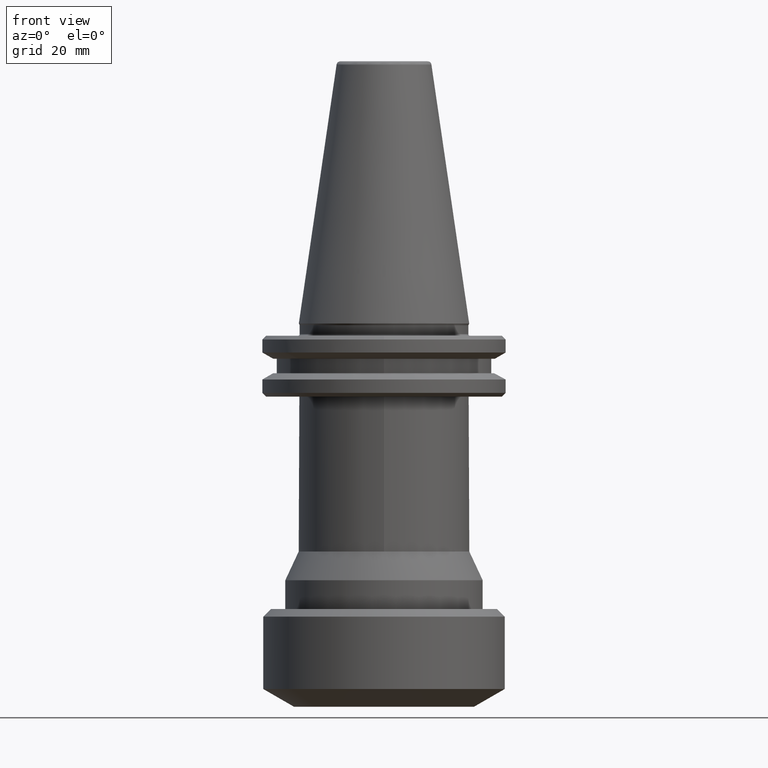
[diagram: clean part render]
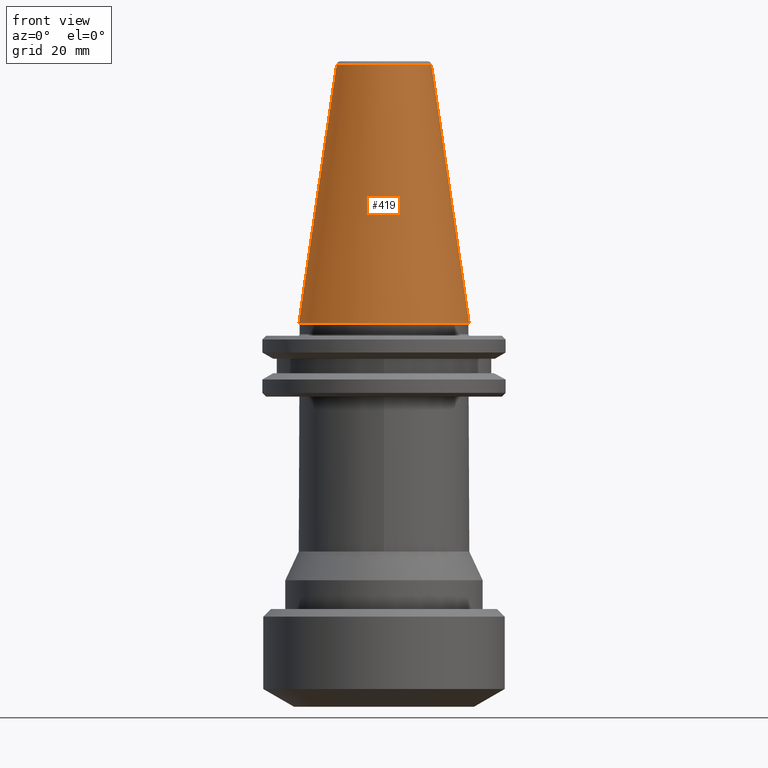
[diagram: same view with one face highlighted and labeled with its STEP entity id]
A machine part, front view. The second image highlights one B-rep face of the part: STEP entity #419.
In plain terms, the highlighted conical surface has half-angle 8.297 deg.
Its self-contained STEP definition (entity closure, byte-faithful):
#46 = VERTEX_POINT ( 'NONE', #1410 ) ;
#82 = CARTESIAN_POINT ( 'NONE',  ( -12.37469537590595300, -5.555843992514513000E-010, 67.54430822698967100 ) ) ;
#86 = VECTOR ( 'NONE', #286, 1000.000000000000100 ) ;
#108 = CARTESIAN_POINT ( 'NONE',  ( -22.22499999999999400, 0.0000000000000000000, 0.0000000000000000000 ) ) ;
#114 = CARTESIAN_POINT ( 'NONE',  ( 0.0000000000000000000, 0.0000000000000000000, 0.0000000000000000000 ) ) ;
#143 = ORIENTED_EDGE ( 'NONE', *, *, #1030, .T. ) ;
#208 = LINE ( 'NONE', #1600, #86 ) ;
#286 = DIRECTION ( 'NONE',  ( -0.1443082272694599400, 0.0000000000000000000, -0.9895327864918603800 ) ) ;
#310 = VECTOR ( 'NONE', #711, 1000.000000000000100 ) ;
#324 = CARTESIAN_POINT ( 'NONE',  ( 0.0000000000000000000, 0.0000000000000000000, 0.0000000000000000000 ) ) ;
#342 = ORIENTED_EDGE ( 'NONE', *, *, #478, .T. ) ;
#407 = LINE ( 'NONE', #1584, #310 ) ;
#419 = ADVANCED_FACE ( 'NONE', ( #674 ), #1191, .T. ) ;
#478 = EDGE_CURVE ( 'NONE', #1772, #46, #1167, .T. ) ;
#484 = ORIENTED_EDGE ( 'NONE', *, *, #1866, .T. ) ;
#602 = VERTEX_POINT ( 'NONE', #82 ) ;
#623 = CARTESIAN_POINT ( 'NONE',  ( 0.0000000000000000000, 0.0000000000000000000, 67.54430822701309000 ) ) ;
#674 = FACE_OUTER_BOUND ( 'NONE', #1656, .T. ) ;
#688 = AXIS2_PLACEMENT_3D ( 'NONE', #623, #1637, #780 ) ;
#704 = AXIS2_PLACEMENT_3D ( 'NONE', #114, #1362, #1218 ) ;
#711 = DIRECTION ( 'NONE',  ( 0.1443082272694599400, 1.767266086161729200E-017, -0.9895327864918603800 ) ) ;
#780 = DIRECTION ( 'NONE',  ( -1.000000000000000000, 0.0000000000000000000, 0.0000000000000000000 ) ) ;
#933 = VERTEX_POINT ( 'NONE', #1704 ) ;
#1030 = EDGE_CURVE ( 'NONE', #933, #602, #1526, .T. ) ;
#1073 = DIRECTION ( 'NONE',  ( -1.000000000000000000, 0.0000000000000000000, 0.0000000000000000000 ) ) ;
#1167 = CIRCLE ( 'NONE', #1300, 22.22499999999999400 ) ;
#1173 = ORIENTED_EDGE ( 'NONE', *, *, #1657, .F. ) ;
#1191 = CONICAL_SURFACE ( 'NONE', #704, 22.22499999999999400, 0.1448138465495947800 ) ;
#1218 = DIRECTION ( 'NONE',  ( -1.000000000000000000, 0.0000000000000000000, 0.0000000000000000000 ) ) ;
#1300 = AXIS2_PLACEMENT_3D ( 'NONE', #324, #1641, #1073 ) ;
#1362 = DIRECTION ( 'NONE',  ( 0.0000000000000000000, 0.0000000000000000000, -1.000000000000000000 ) ) ;
#1410 = CARTESIAN_POINT ( 'NONE',  ( 22.22499999999999400, 2.721777511104992100E-015, 0.0000000000000000000 ) ) ;
#1526 = CIRCLE ( 'NONE', #688, 12.37469537599809200 ) ;
#1584 = CARTESIAN_POINT ( 'NONE',  ( 22.22499999999999400, 2.721777511104992100E-015, 0.0000000000000000000 ) ) ;
#1600 = CARTESIAN_POINT ( 'NONE',  ( -22.22499999999999400, 0.0000000000000000000, 0.0000000000000000000 ) ) ;
#1637 = DIRECTION ( 'NONE',  ( 0.0000000000000000000, 0.0000000000000000000, -1.000000000000000000 ) ) ;
#1641 = DIRECTION ( 'NONE',  ( -0.0000000000000000000, -0.0000000000000000000, 1.000000000000000000 ) ) ;
#1656 = EDGE_LOOP ( 'NONE', ( #1173, #143, #484, #342 ) ) ;
#1657 = EDGE_CURVE ( 'NONE', #933, #46, #407, .T. ) ;
#1704 = CARTESIAN_POINT ( 'NONE',  ( 12.37469537590452100, -2.855354478374084000E-009, 67.54430822699950500 ) ) ;
#1772 = VERTEX_POINT ( 'NONE', #108 ) ;
#1866 = EDGE_CURVE ( 'NONE', #602, #1772, #208, .T. ) ;